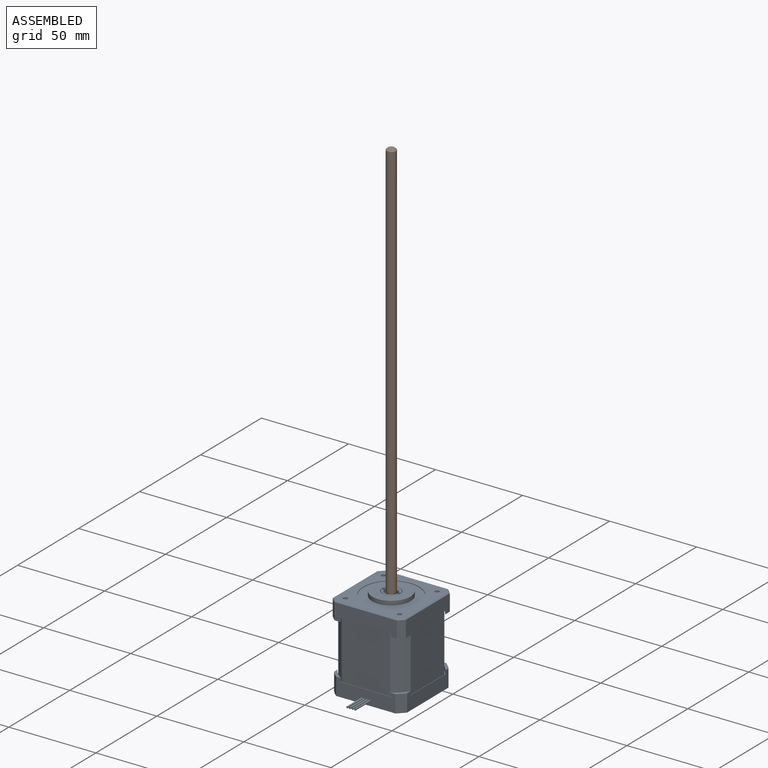
[diagram: assembled view]
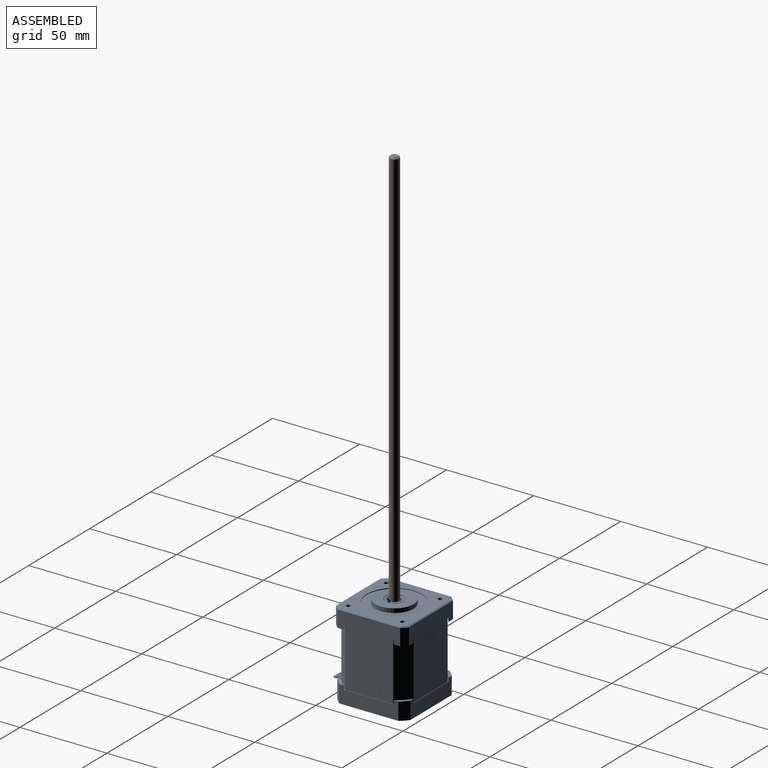
[diagram: assembled view, second angle]
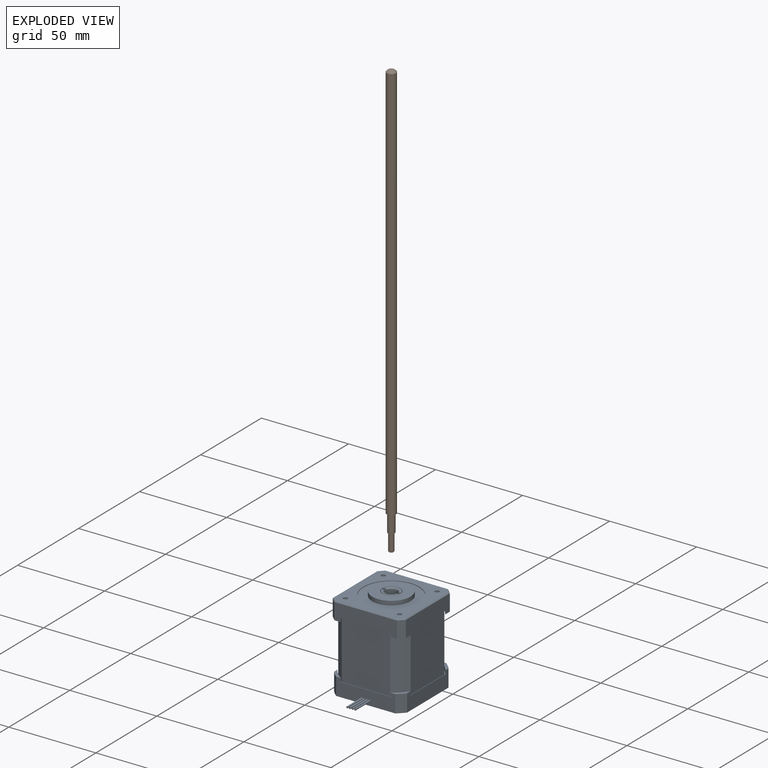
[diagram: exploded view]
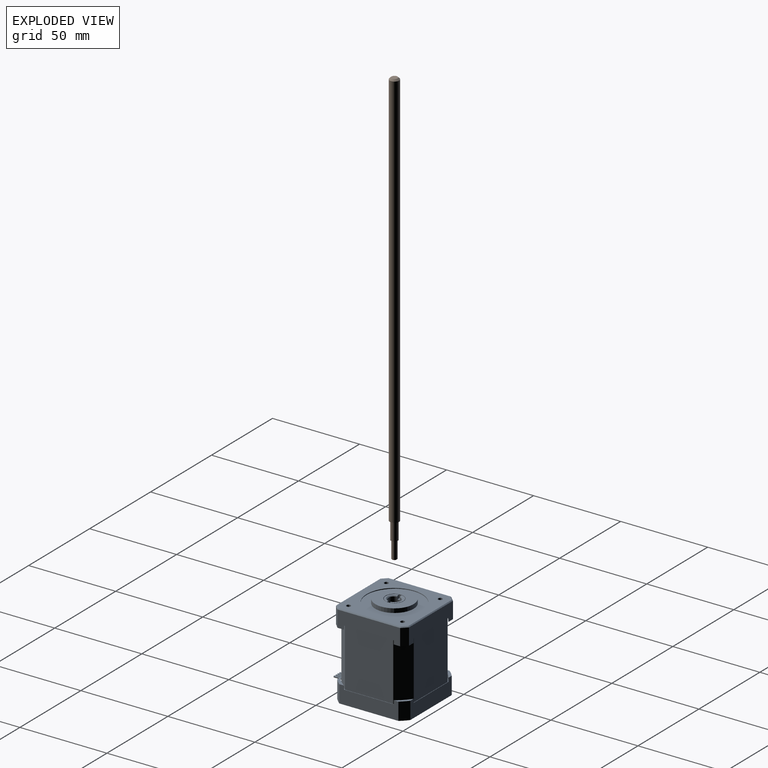
[diagram: exploded view, second angle]
ASSEMBLY  parts=2 mates=2
PART A: 112 faces, bbox 42x54x51 mm
  f0: cylinder r=11mm len=22mm, axis (0,0,-1), area 165.9mm2, adj f85,f86
  f1: cylinder r=16mm len=32mm, axis (0,0,1), area 40.2mm2, adj f85,f89
  f2: cylinder r=1.2mm len=7.9mm, axis (0,0,-1), area 59.6mm2, adj f89,f105
  f3: cylinder r=1.2mm len=7.9mm, axis (0,0,-1), area 59.6mm2, adj f89,f103
  f4: cylinder r=1.2mm len=7.9mm, axis (0,0,-1), area 59.6mm2, adj f89,f106
  f5: cylinder r=1.2mm len=7.9mm, axis (0,0,-1), area 59.6mm2, adj f89,f107
  f6: cylinder r=3.5mm len=9.5mm, axis (0,0,-1), area 204.4mm2, adj f30,f31,f34,f36,f40,f41,f42,f45
  f7: cylinder r=0.5mm len=12mm, axis (0,1,0), area 37.7mm2, adj f49,f50
  f8: cylinder r=0.5mm len=12mm, axis (0,1,0), area 37.7mm2, adj f48,f50
  f9: cylinder r=0.5mm len=12mm, axis (0,1,0), area 37.7mm2, adj f47,f50
  f10: cylinder r=0.5mm len=12mm, axis (0,1,0), area 37.7mm2, adj f46,f50
  f11: cylinder r=2.46mm len=12mm, axis (0,0,1), area 185.5mm2, adj f12,f45
  f12: cone r=1.23mm half-angle=60deg, axis (0,0,-1), area 22mm2, adj f11
  f13: cylinder r=2.46mm len=12mm, axis (0,0,-1), area 185.5mm2, adj f14,f44
  f14: cone r=1.23mm half-angle=60deg, axis (0,0,1), area 22mm2, adj f13
  f15: cylinder r=5.25mm len=10.5mm, axis (0,0,1), area 66mm2, adj f42,f67
  f16: cylinder r=5.25mm len=10.5mm, axis (0,0,-1), area 66mm2, adj f43,f86
  f17: cylinder r=3.5mm len=9.5mm, axis (0,0,-1), area 204.4mm2, adj f19,f22,f23,f24,f25,f29,f43,f44
  f18: cylinder r=5mm len=9.89mm, axis (0,0,-1), area 28.3mm2, adj f21,f22,f23,f43
  f19: cone r=3.75mm half-angle=45deg, axis (0,0,1), area 7.3mm2, adj f17,f20,f22,f23
  f20: plane 9.87x4.24mm, normal (0,0,1), area 12.5mm2, adj f19,f21,f22,f23
  f21: cone r=5mm half-angle=45deg, axis (0,0,-1), area 0.2mm2, adj f18,f20,f22,f23
  f22: plane 2x1.52mm, normal (0,1,0), area 2.9mm2, adj f17,f18,f19,f20,f21,f43
  f23: plane 2x1.52mm, normal (0,1,0), area 2.9mm2, adj f17,f18,f19,f20,f21,f43
  f24: plane 2x1.52mm, normal (0,-1,0), area 2.9mm2, adj f17,f26,f27,f28,f29,f43
  f25: plane 2x1.52mm, normal (0,-1,0), area 2.9mm2, adj f17,f26,f27,f28,f29,f43
  f26: cone r=5mm half-angle=45deg, axis (0,0,-1), area 0.2mm2, adj f24,f25,f27,f28
  f27: cylinder r=5mm len=9.89mm, axis (0,0,-1), area 28.3mm2, adj f24,f25,f26,f43
  f28: plane 9.87x4.24mm, normal (0,0,1), area 12.5mm2, adj f24,f25,f26,f29
  f29: cone r=3.75mm half-angle=45deg, axis (0,0,1), area 7.3mm2, adj f17,f24,f25,f28
  f30: plane 2x1.52mm, normal (0,1,0), area 2.9mm2, adj f6,f32,f33,f34,f35,f42
  f31: plane 2x1.52mm, normal (0,1,0), area 2.9mm2, adj f6,f32,f33,f34,f35,f42
  f32: cylinder r=5mm len=9.89mm, axis (0,0,1), area 28.3mm2, adj f30,f31,f33,f42
  f33: cone r=5mm half-angle=45deg, axis (0,0,1), area 0.2mm2, adj f30,f31,f32,f35
  f34: cone r=3.75mm half-angle=45deg, axis (0,0,-1), area 7.3mm2, adj f6,f30,f31,f35
  f35: plane 9.87x4.24mm, normal (0,0,-1), area 12.5mm2, adj f30,f31,f33,f34
  f36: cone r=3.75mm half-angle=45deg, axis (0,0,-1), area 7.3mm2, adj f6,f37,f40,f41
  f37: plane 9.87x4.24mm, normal (0,0,-1), area 12.5mm2, adj f36,f38,f40,f41
  f38: cone r=5mm half-angle=45deg, axis (0,0,1), area 0.2mm2, adj f37,f39,f40,f41
  f39: cylinder r=5mm len=9.89mm, axis (0,0,1), area 28.3mm2, adj f38,f40,f41,f42
  f40: plane 2x1.52mm, normal (0,-1,0), area 2.9mm2, adj f6,f36,f37,f38,f39,f42
  f41: plane 2x1.52mm, normal (0,-1,0), area 2.9mm2, adj f6,f36,f37,f38,f39,f42
  f42: plane 10.5x10.5mm, normal (0,0,-1), area 12.6mm2, adj f6,f15,f30,f31,f32,f39,f40,f41
  f43: plane 10.5x10.5mm, normal (0,0,1), area 12.6mm2, adj f16,f17,f18,f22,f23,f24,f25,f27
  f44: plane 7x7mm, normal (0,0,1), area 19.5mm2, adj f13,f17
  f45: plane 7x7mm, normal (0,0,-1), area 19.5mm2, adj f6,f11
  f46: plane 1x1mm, normal (0,-1,0), area 0.8mm2, adj f10
  f47: plane 1x1mm, normal (0,-1,0), area 0.8mm2, adj f9
  f48: plane 1x1mm, normal (0,-1,0), area 0.8mm2, adj f8
  f49: plane 1x1mm, normal (0,-1,0), area 0.8mm2, adj f7
  f50: plane 33.94x10mm, normal (0,-1,0), area 276.3mm2, adj f7,f8,f9,f10,f51,f53,f55,f60
  f51: plane 42x42mm, normal (0,0,1), area 38.1mm2, adj f50,f52,f53,f54,f55,f56,f57,f65
  f52: cylinder r=25.4mm len=6.71mm, axis (0,0,1), area 20.1mm2, adj f51,f57,f59,f65
  f53: cylinder r=25.4mm len=6.71mm, axis (0,0,1), area 20.1mm2, adj f50,f51,f60,f65
  f54: cylinder r=25.4mm len=6.71mm, axis (0,0,1), area 20.1mm2, adj f51,f56,f57,f58
  f55: cylinder r=25.4mm len=6.71mm, axis (0,0,1), area 20.1mm2, adj f50,f51,f56,f61
  f56: plane 33.94x10mm, normal (-1,0,0), area 279.4mm2, adj f51,f54,f55,f58,f61,f63,f64,f67
  f57: plane 33.94x10mm, normal (0,1,0), area 279.4mm2, adj f51,f52,f54,f58,f59,f64,f66,f67
  f58: plane 6.71x6.71mm, normal (0,0,1), area 12.1mm2, adj f54,f56,f57,f64
  f59: plane 6.71x6.71mm, normal (0,0,1), area 12.1mm2, adj f52,f57,f65,f66
  f60: plane 6.71x6.71mm, normal (0,0,1), area 12.1mm2, adj f50,f53,f62,f65
  f61: plane 6.71x6.71mm, normal (0,0,1), area 12.1mm2, adj f50,f55,f56,f63
  f62: cylinder r=27mm len=10mm, axis (0,0,1), area 57.1mm2, adj f50,f60,f65,f67
  f63: cylinder r=27mm len=10mm, axis (0,0,1), area 57.1mm2, adj f50,f56,f61,f67
  f64: cylinder r=27mm len=10mm, axis (0,0,1), area 57.1mm2, adj f56,f57,f58,f67
  f65: plane 33.94x10mm, normal (1,0,0), area 279.4mm2, adj f51,f52,f53,f59,f60,f62,f66,f67
  f66: cylinder r=27mm len=10mm, axis (0,0,1), area 57.1mm2, adj f57,f59,f65,f67
  f67: plane 42x42mm, normal (0,0,-1), area 1647.2mm2, adj f15,f50,f56,f57,f62,f63,f64,f65
  f68: plane 9.5x3mm, normal (0.71,0.71,0), area 40.3mm2, adj f74,f78,f79,f91
  f69: plane 9.5x3mm, normal (0.71,-0.71,0), area 40.3mm2, adj f70,f75,f79,f88
  f70: plane 36x9.5mm, normal (0,-1,0), area 282mm2, adj f69,f71,f75,f76,f80,f81,f82,f87
  f71: plane 9.5x3mm, normal (-0.71,-0.71,0), area 40.3mm2, adj f70,f72,f76,f95
  f72: plane 36x9.5mm, normal (-1,0,0), area 282mm2, adj f71,f73,f76,f77,f80,f82,f84,f94
  f73: plane 9.5x3mm, normal (-0.71,0.71,0), area 40.3mm2, adj f72,f74,f77,f93
  f74: plane 36x9.5mm, normal (0,1,0), area 282mm2, adj f68,f73,f77,f78,f80,f83,f84,f92
  f75: plane 6.71x6.71mm, normal (0,0,-1), area 15.2mm2, adj f69,f70,f79,f81
  f76: plane 6.71x6.71mm, normal (0,0,-1), area 15.2mm2, adj f70,f71,f72,f82
  f77: plane 6.71x6.71mm, normal (0,0,-1), area 15.2mm2, adj f72,f73,f74,f84
  f78: plane 6.71x6.71mm, normal (0,0,-1), area 15.2mm2, adj f68,f74,f79,f83
  f79: plane 36x9.5mm, normal (1,0,0), area 282mm2, adj f68,f69,f75,f78,f80,f81,f83,f90
  f80: plane 42x42mm, normal (0,0,-1), area 38.1mm2, adj f70,f72,f74,f79,f81,f82,f83,f84
  f81: cylinder r=25.4mm len=6.71mm, axis (0,0,1), area 20.1mm2, adj f70,f75,f79,f80
  f82: cylinder r=25.4mm len=6.71mm, axis (0,0,1), area 20.1mm2, adj f70,f72,f76,f80
  f83: cylinder r=25.4mm len=6.71mm, axis (0,0,1), area 20.1mm2, adj f74,f78,f79,f80
  f84: cylinder r=25.4mm len=6.71mm, axis (0,0,1), area 20.1mm2, adj f72,f74,f77,f80
  f85: plane 32x32mm, normal (0,0,1), area 424.1mm2, adj f0,f1
  f86: plane 22x22mm, normal (0,0,1), area 293.5mm2, adj f0,f16
  f87: plane 36x0.5mm, normal (0,-0.71,0.71), area 25.3mm2, adj f70,f88,f89,f95
  f88: plane 3.21x3.21mm, normal (0.5,-0.5,0.71), area 2.9mm2, adj f69,f87,f89,f90
  f89: plane 41x41mm, normal (0,0,1), area 844.1mm2, adj f1,f2,f3,f4,f5,f87,f88,f90
  f90: plane 36x0.5mm, normal (0.71,0,0.71), area 25.3mm2, adj f79,f88,f89,f91
  f91: plane 3.21x3.21mm, normal (0.5,0.5,0.71), area 2.9mm2, adj f68,f89,f90,f92
  f92: plane 36x0.5mm, normal (0,0.71,0.71), area 25.3mm2, adj f74,f89,f91,f93
  f93: plane 3.21x3.21mm, normal (-0.5,0.5,0.71), area 2.9mm2, adj f73,f89,f92,f94
  f94: plane 36x0.5mm, normal (-0.71,0,0.71), area 25.3mm2, adj f72,f89,f93,f95
  f95: plane 3.21x3.21mm, normal (-0.5,-0.5,0.71), area 2.9mm2, adj f71,f87,f89,f94
  f96: cylinder r=25mm len=33.2mm, axis (0,0,1), area 327.5mm2, adj f51,f80,f97,f99
  f97: plane 33.2x27.74mm, normal (1,0,0), area 920.9mm2, adj f51,f80,f96,f102
  f98: cylinder r=25mm len=33.2mm, axis (0,0,1), area 327.5mm2, adj f51,f80,f99,f101
  f99: plane 33.2x27.74mm, normal (0,1,0), area 920.9mm2, adj f51,f80,f96,f98
  f100: cylinder r=25mm len=33.2mm, axis (0,0,1), area 327.5mm2, adj f51,f80,f101,f104
  f101: plane 33.2x27.74mm, normal (-1,0,0), area 920.9mm2, adj f51,f80,f98,f100
  f102: cylinder r=25mm len=33.2mm, axis (0,0,1), area 327.5mm2, adj f51,f80,f97,f104
  f103: plane 2.4x2.4mm, normal (0,0,1), area 4.5mm2, adj f3
  f104: plane 33.2x27.74mm, normal (0,-1,0), area 920.9mm2, adj f51,f80,f100,f102
  f105: plane 2.4x2.4mm, normal (0,0,1), area 4.5mm2, adj f2
  f106: plane 2.4x2.4mm, normal (0,0,1), area 4.5mm2, adj f4
  f107: plane 2.4x2.4mm, normal (0,0,1), area 4.5mm2, adj f5
  f108: cylinder r=5.03mm len=10.05mm, axis (0,0,1), area 233.6mm2, adj f110,f111
  f109: cylinder r=5mm len=10mm, axis (0,0,-1), area 232.5mm2, adj f110,f111
  f110: plane 10.05x10.05mm, normal (0,0,1), area 0.8mm2, adj f108,f109
  f111: plane 10.05x10.05mm, normal (0,0,-1), area 0.8mm2, adj f108,f109
PART B: 9 faces, bbox 5.4x250x5.4 mm
  f0: cone r=1.35mm half-angle=45deg, axis (0,1,0), area 3.6mm2, adj f1,f7
  f1: cylinder r=1.5mm len=9.7mm, axis (0,1,0), area 91.4mm2, adj f0,f6
  f2: cylinder r=2mm len=10mm, axis (0,1,0), area 125.7mm2, adj f5,f6
  f3: cylinder r=2.7mm len=229.1mm, axis (0,1,0), area 3886.6mm2, adj f4,f5
  f4: cone r=2.25mm half-angle=45deg, axis (0,-1,0), area 18mm2, adj f3,f8
  f5: plane 5.4x5.4mm, normal (0,-1,0), area 10.3mm2, adj f2,f3
  f6: plane 4x4mm, normal (0,-1,0), area 5.5mm2, adj f1,f2
  f7: plane 2.4x2.4mm, normal (0,-1,0), area 4.5mm2, adj f0
  f8: plane 3.6x3.6mm, normal (0,1,0), area 10.2mm2, adj f4
PLACE A t=(-21.42,-19.85,3.29)mm fixed
PLACE B rot(axis=(1,0,0),90deg) t=(-21.42,-19.85,-14.71)mm
MATE planar B.f0 <-> A.f0  axis (0,0,-1) through (-21.42,-19.85,5.29)mm
MATE slider A.f0 <-> B.f0  axis (0,0,-1) through (-21.42,-19.85,0.04)mm
